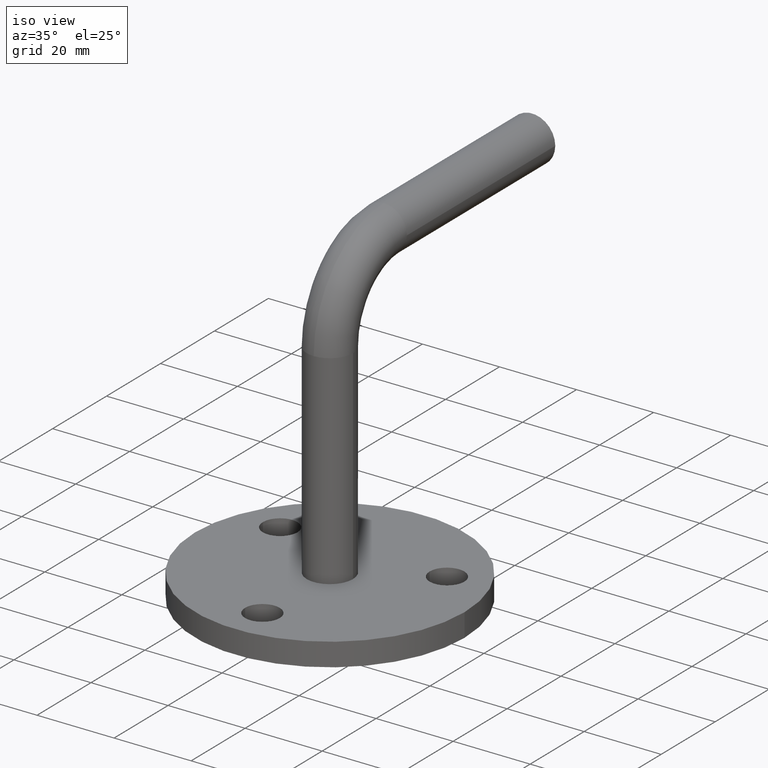
[diagram: clean part render]
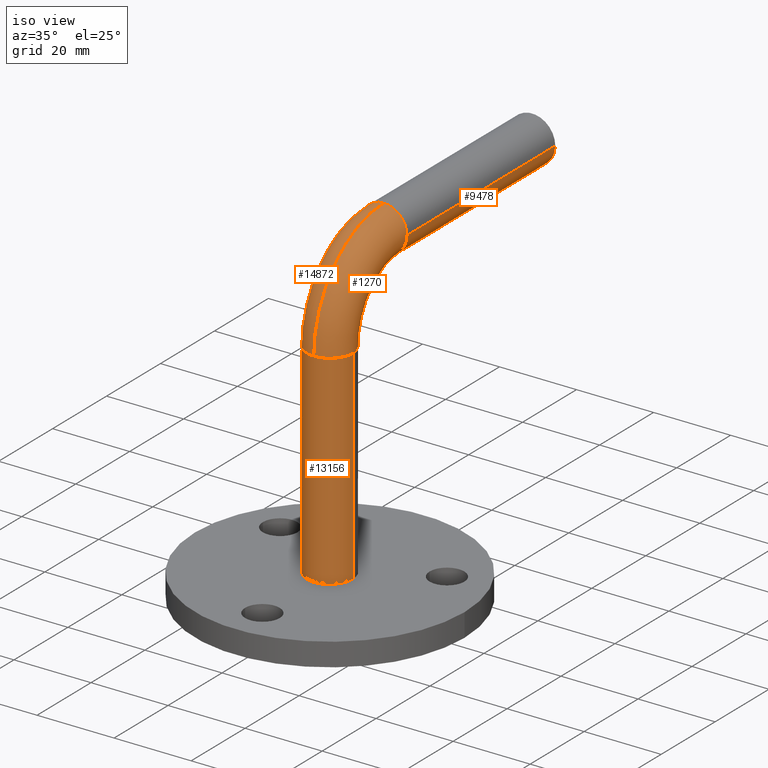
[diagram: same view with one multi-face feature highlighted, each face labeled with its STEP entity id]
A machine part, iso view. The highlighted faces form ONE feature: a constant-radius fillet chain: 4 tangent blend faces with common blend radius 6 mm. The faces share edges in the B-rep.
Their STEP definitions:
[1] entity #14872 (Torus):
#178 = VERTEX_POINT ( 'NONE', #11381 ) ;
#617 = VERTEX_POINT ( 'NONE', #6529 ) ;
#913 = ORIENTED_EDGE ( 'NONE', *, *, #7463, .T. ) ;
#1029 = CARTESIAN_POINT ( 'NONE',  ( 0.0000000000000000000, 0.0000000000000000000, 59.00000000000000000 ) ) ;
#1162 = FACE_OUTER_BOUND ( 'NONE', #6257, .T. ) ;
#1683 = DIRECTION ( 'NONE',  ( -1.000000000000000000, -0.0000000000000000000, -0.0000000000000000000 ) ) ;
#1951 = AXIS2_PLACEMENT_3D ( 'NONE', #13041, #9296, #12993 ) ;
#2080 = ORIENTED_EDGE ( 'NONE', *, *, #13804, .T. ) ;
#2146 = DIRECTION ( 'NONE',  ( -1.000000000000000000, 0.0000000000000000000, 0.0000000000000000000 ) ) ;
#2184 = DIRECTION ( 'NONE',  ( -1.000000000000000000, 0.0000000000000000000, 0.0000000000000000000 ) ) ;
#2255 = CARTESIAN_POINT ( 'NONE',  ( 0.0000000000000000000, 20.00000000000000400, 79.00000000000000000 ) ) ;
#2323 = DIRECTION ( 'NONE',  ( 0.0000000000000000000, -1.000000000000000000, 1.608122649676636600E-016 ) ) ;
#2371 = CARTESIAN_POINT ( 'NONE',  ( 0.0000000000000000000, 20.00000000000000400, 79.00000000000000000 ) ) ;
#2390 = DIRECTION ( 'NONE',  ( 0.0000000000000000000, 0.0000000000000000000, -1.000000000000000000 ) ) ;
#3187 = CARTESIAN_POINT ( 'NONE',  ( -6.000000000000000900, 20.00000000000000400, 79.00000000000000000 ) ) ;
#3403 = ORIENTED_EDGE ( 'NONE', *, *, #10945, .F. ) ;
#3743 = CARTESIAN_POINT ( 'NONE',  ( 7.347880794884120700E-016, 20.00000000000000000, 59.00000000000000000 ) ) ;
#3798 = CARTESIAN_POINT ( 'NONE',  ( 0.0000000000000000000, 20.00000000000000000, 59.00000000000000000 ) ) ;
#4017 = TOROIDAL_SURFACE ( 'NONE', #5870, 20.00000000000000000, 6.000000000000000900 ) ;
#5027 = DIRECTION ( 'NONE',  ( -1.000000000000000000, -0.0000000000000000000, -0.0000000000000000000 ) ) ;
#5229 = CIRCLE ( 'NONE', #1951, 6.000000000000000900 ) ;
#5315 = CARTESIAN_POINT ( 'NONE',  ( 0.0000000000000000000, 20.00000000000000000, 59.00000000000000000 ) ) ;
#5325 = CIRCLE ( 'NONE', #11515, 25.99999999999999600 ) ;
#5870 = AXIS2_PLACEMENT_3D ( 'NONE', #5315, #1683, #15108 ) ;
#6257 = EDGE_LOOP ( 'NONE', ( #3403, #913, #10732, #2080, #8672, #10711 ) ) ;
#6529 = CARTESIAN_POINT ( 'NONE',  ( 7.347880794884119700E-016, 6.000000000000000900, 59.00000000000000000 ) ) ;
#6743 = AXIS2_PLACEMENT_3D ( 'NONE', #2255, #7146, #2146 ) ;
#7146 = DIRECTION ( 'NONE',  ( 0.0000000000000000000, -1.000000000000000000, 1.608122649676636600E-016 ) ) ;
#7436 = CARTESIAN_POINT ( 'NONE',  ( 0.0000000000000000000, -6.000000000000001800, 59.00000000000000000 ) ) ;
#7463 = EDGE_CURVE ( 'NONE', #11131, #178, #5325, .T. ) ;
#7633 = AXIS2_PLACEMENT_3D ( 'NONE', #2371, #2323, #10841 ) ;
#8046 = CIRCLE ( 'NONE', #9568, 13.99999999999999800 ) ;
#8241 = CIRCLE ( 'NONE', #7633, 6.000000000000000900 ) ;
#8567 = CIRCLE ( 'NONE', #6743, 6.000000000000000900 ) ;
#8601 = CIRCLE ( 'NONE', #12025, 6.000000000000000900 ) ;
#8672 = ORIENTED_EDGE ( 'NONE', *, *, #10815, .F. ) ;
#9296 = DIRECTION ( 'NONE',  ( 0.0000000000000000000, 0.0000000000000000000, -1.000000000000000000 ) ) ;
#9568 = AXIS2_PLACEMENT_3D ( 'NONE', #3743, #12250, #13329 ) ;
#9583 = VERTEX_POINT ( 'NONE', #3187 ) ;
#10329 = EDGE_CURVE ( 'NONE', #178, #9583, #8241, .T. ) ;
#10711 = ORIENTED_EDGE ( 'NONE', *, *, #11033, .F. ) ;
#10732 = ORIENTED_EDGE ( 'NONE', *, *, #10329, .T. ) ;
#10815 = EDGE_CURVE ( 'NONE', #617, #14056, #8046, .T. ) ;
#10841 = DIRECTION ( 'NONE',  ( -1.000000000000000000, 0.0000000000000000000, 0.0000000000000000000 ) ) ;
#10945 = EDGE_CURVE ( 'NONE', #11131, #14095, #5229, .T. ) ;
#11033 = EDGE_CURVE ( 'NONE', #14095, #617, #8601, .T. ) ;
#11131 = VERTEX_POINT ( 'NONE', #7436 ) ;
#11381 = CARTESIAN_POINT ( 'NONE',  ( 0.0000000000000000000, 20.00000000000000400, 84.99999999999998600 ) ) ;
#11515 = AXIS2_PLACEMENT_3D ( 'NONE', #3798, #5027, #13535 ) ;
#12025 = AXIS2_PLACEMENT_3D ( 'NONE', #1029, #2390, #2184 ) ;
#12250 = DIRECTION ( 'NONE',  ( -1.000000000000000000, -0.0000000000000000000, -0.0000000000000000000 ) ) ;
#12572 = CARTESIAN_POINT ( 'NONE',  ( 7.347880794884114800E-016, 20.00000000000000400, 73.00000000000000000 ) ) ;
#12993 = DIRECTION ( 'NONE',  ( -1.000000000000000000, 0.0000000000000000000, 0.0000000000000000000 ) ) ;
#13041 = CARTESIAN_POINT ( 'NONE',  ( 0.0000000000000000000, 0.0000000000000000000, 59.00000000000000000 ) ) ;
#13329 = DIRECTION ( 'NONE',  ( 0.0000000000000000000, 0.0000000000000000000, 1.000000000000000000 ) ) ;
#13535 = DIRECTION ( 'NONE',  ( 0.0000000000000000000, 0.0000000000000000000, 1.000000000000000000 ) ) ;
#13804 = EDGE_CURVE ( 'NONE', #9583, #14056, #8567, .T. ) ;
#14056 = VERTEX_POINT ( 'NONE', #12572 ) ;
#14095 = VERTEX_POINT ( 'NONE', #15096 ) ;
#14872 = ADVANCED_FACE ( 'NONE', ( #1162 ), #4017, .T. ) ;
#15096 = CARTESIAN_POINT ( 'NONE',  ( -6.000000000000000900, 0.0000000000000000000, 59.00000000000000000 ) ) ;
#15108 = DIRECTION ( 'NONE',  ( 0.0000000000000000000, 0.0000000000000000000, 1.000000000000000000 ) ) ;
[2] entity #13156 (Cylinder):
#772 = ORIENTED_EDGE ( 'NONE', *, *, #14111, .T. ) ;
#1804 = ORIENTED_EDGE ( 'NONE', *, *, #2779, .T. ) ;
#1951 = AXIS2_PLACEMENT_3D ( 'NONE', #13041, #9296, #12993 ) ;
#2013 = LINE ( 'NONE', #15620, #3916 ) ;
#2779 = EDGE_CURVE ( 'NONE', #14095, #13806, #10975, .T. ) ;
#2887 = ORIENTED_EDGE ( 'NONE', *, *, #15567, .F. ) ;
#3200 = DIRECTION ( 'NONE',  ( -0.0000000000000000000, -0.0000000000000000000, -1.000000000000000000 ) ) ;
#3204 = DIRECTION ( 'NONE',  ( -1.000000000000000000, 0.0000000000000000000, 0.0000000000000000000 ) ) ;
#3248 = DIRECTION ( 'NONE',  ( -1.000000000000000000, 0.0000000000000000000, 0.0000000000000000000 ) ) ;
#3619 = VERTEX_POINT ( 'NONE', #9438 ) ;
#3916 = VECTOR ( 'NONE', #5928, 1000.000000000000000 ) ;
#4146 = DIRECTION ( 'NONE',  ( 0.0000000000000000000, 0.0000000000000000000, 1.000000000000000000 ) ) ;
#4299 = AXIS2_PLACEMENT_3D ( 'NONE', #14278, #8122, #3204 ) ;
#5229 = CIRCLE ( 'NONE', #1951, 6.000000000000000900 ) ;
#5389 = DIRECTION ( 'NONE',  ( 1.000000000000000000, 0.0000000000000000000, 0.0000000000000000000 ) ) ;
#5419 = ORIENTED_EDGE ( 'NONE', *, *, #15759, .T. ) ;
#5821 = AXIS2_PLACEMENT_3D ( 'NONE', #12710, #4146, #5389 ) ;
#5928 = DIRECTION ( 'NONE',  ( -0.0000000000000000000, -0.0000000000000000000, -1.000000000000000000 ) ) ;
#6317 = CYLINDRICAL_SURFACE ( 'NONE', #8554, 6.000000000000000900 ) ;
#7436 = CARTESIAN_POINT ( 'NONE',  ( 0.0000000000000000000, -6.000000000000001800, 59.00000000000000000 ) ) ;
#7952 = CARTESIAN_POINT ( 'NONE',  ( 6.000000000000000900, 7.347880794884120700E-016, 59.00000000000000000 ) ) ;
#8122 = DIRECTION ( 'NONE',  ( 0.0000000000000000000, 0.0000000000000000000, -1.000000000000000000 ) ) ;
#8554 = AXIS2_PLACEMENT_3D ( 'NONE', #10438, #15405, #3248 ) ;
#9296 = DIRECTION ( 'NONE',  ( 0.0000000000000000000, 0.0000000000000000000, -1.000000000000000000 ) ) ;
#9438 = CARTESIAN_POINT ( 'NONE',  ( 6.000000000000000900, 7.347880794884120700E-016, 5.999999999999998200 ) ) ;
#10438 = CARTESIAN_POINT ( 'NONE',  ( 0.0000000000000000000, 0.0000000000000000000, 59.00000000000000000 ) ) ;
#10586 = CARTESIAN_POINT ( 'NONE',  ( -6.000000000000000900, 0.0000000000000000000, 59.00000000000000000 ) ) ;
#10697 = FACE_OUTER_BOUND ( 'NONE', #12482, .T. ) ;
#10773 = CARTESIAN_POINT ( 'NONE',  ( -6.000000000000000900, 0.0000000000000000000, 5.999999999999998200 ) ) ;
#10945 = EDGE_CURVE ( 'NONE', #11131, #14095, #5229, .T. ) ;
#10975 = LINE ( 'NONE', #10586, #14799 ) ;
#11131 = VERTEX_POINT ( 'NONE', #7436 ) ;
#11357 = VERTEX_POINT ( 'NONE', #7952 ) ;
#12096 = CIRCLE ( 'NONE', #5821, 6.000000000000000900 ) ;
#12482 = EDGE_LOOP ( 'NONE', ( #2887, #772, #15650, #1804, #5419 ) ) ;
#12710 = CARTESIAN_POINT ( 'NONE',  ( 0.0000000000000000000, 0.0000000000000000000, 5.999999999999998200 ) ) ;
#12993 = DIRECTION ( 'NONE',  ( -1.000000000000000000, 0.0000000000000000000, 0.0000000000000000000 ) ) ;
#13041 = CARTESIAN_POINT ( 'NONE',  ( 0.0000000000000000000, 0.0000000000000000000, 59.00000000000000000 ) ) ;
#13156 = ADVANCED_FACE ( 'NONE', ( #10697 ), #6317, .T. ) ;
#13739 = CIRCLE ( 'NONE', #4299, 6.000000000000000900 ) ;
#13806 = VERTEX_POINT ( 'NONE', #10773 ) ;
#14095 = VERTEX_POINT ( 'NONE', #15096 ) ;
#14111 = EDGE_CURVE ( 'NONE', #11357, #11131, #13739, .T. ) ;
#14278 = CARTESIAN_POINT ( 'NONE',  ( 0.0000000000000000000, 0.0000000000000000000, 59.00000000000000000 ) ) ;
#14799 = VECTOR ( 'NONE', #3200, 1000.000000000000000 ) ;
#15096 = CARTESIAN_POINT ( 'NONE',  ( -6.000000000000000900, 0.0000000000000000000, 59.00000000000000000 ) ) ;
#15405 = DIRECTION ( 'NONE',  ( -0.0000000000000000000, -0.0000000000000000000, -1.000000000000000000 ) ) ;
#15567 = EDGE_CURVE ( 'NONE', #11357, #3619, #2013, .T. ) ;
#15620 = CARTESIAN_POINT ( 'NONE',  ( 6.000000000000000900, 7.347880794884120700E-016, 59.00000000000000000 ) ) ;
#15650 = ORIENTED_EDGE ( 'NONE', *, *, #10945, .T. ) ;
#15759 = EDGE_CURVE ( 'NONE', #13806, #3619, #12096, .T. ) ;
[3] entity #1270 (Torus):
#17 = DIRECTION ( 'NONE',  ( -1.000000000000000000, 0.0000000000000000000, 0.0000000000000000000 ) ) ;
#178 = VERTEX_POINT ( 'NONE', #11381 ) ;
#238 = CARTESIAN_POINT ( 'NONE',  ( 6.000000000000000900, 20.00000000000000400, 79.00000000000000000 ) ) ;
#617 = VERTEX_POINT ( 'NONE', #6529 ) ;
#1270 = ADVANCED_FACE ( 'NONE', ( #3566 ), #7361, .T. ) ;
#2467 = CARTESIAN_POINT ( 'NONE',  ( 0.0000000000000000000, 20.00000000000000400, 79.00000000000000000 ) ) ;
#2954 = CARTESIAN_POINT ( 'NONE',  ( 0.0000000000000000000, 20.00000000000000400, 79.00000000000000000 ) ) ;
#3199 = CIRCLE ( 'NONE', #3370, 6.000000000000000900 ) ;
#3204 = DIRECTION ( 'NONE',  ( -1.000000000000000000, 0.0000000000000000000, 0.0000000000000000000 ) ) ;
#3370 = AXIS2_PLACEMENT_3D ( 'NONE', #2954, #12684, #5417 ) ;
#3566 = FACE_OUTER_BOUND ( 'NONE', #12451, .T. ) ;
#3697 = EDGE_CURVE ( 'NONE', #14056, #8956, #4495, .T. ) ;
#3743 = CARTESIAN_POINT ( 'NONE',  ( 7.347880794884120700E-016, 20.00000000000000000, 59.00000000000000000 ) ) ;
#3798 = CARTESIAN_POINT ( 'NONE',  ( 0.0000000000000000000, 20.00000000000000000, 59.00000000000000000 ) ) ;
#4299 = AXIS2_PLACEMENT_3D ( 'NONE', #14278, #8122, #3204 ) ;
#4495 = CIRCLE ( 'NONE', #8657, 6.000000000000000900 ) ;
#4843 = ORIENTED_EDGE ( 'NONE', *, *, #11142, .F. ) ;
#5027 = DIRECTION ( 'NONE',  ( -1.000000000000000000, -0.0000000000000000000, -0.0000000000000000000 ) ) ;
#5325 = CIRCLE ( 'NONE', #11515, 25.99999999999999600 ) ;
#5417 = DIRECTION ( 'NONE',  ( -1.000000000000000000, 0.0000000000000000000, 0.0000000000000000000 ) ) ;
#5418 = CIRCLE ( 'NONE', #13883, 6.000000000000000900 ) ;
#5931 = ORIENTED_EDGE ( 'NONE', *, *, #10815, .T. ) ;
#6110 = DIRECTION ( 'NONE',  ( -1.000000000000000000, 0.0000000000000000000, 0.0000000000000000000 ) ) ;
#6529 = CARTESIAN_POINT ( 'NONE',  ( 7.347880794884119700E-016, 6.000000000000000900, 59.00000000000000000 ) ) ;
#6794 = ORIENTED_EDGE ( 'NONE', *, *, #7463, .F. ) ;
#7282 = CARTESIAN_POINT ( 'NONE',  ( 0.0000000000000000000, 0.0000000000000000000, 59.00000000000000000 ) ) ;
#7341 = DIRECTION ( 'NONE',  ( -1.000000000000000000, -0.0000000000000000000, -0.0000000000000000000 ) ) ;
#7361 = TOROIDAL_SURFACE ( 'NONE', #10424, 20.00000000000000000, 6.000000000000000900 ) ;
#7383 = ORIENTED_EDGE ( 'NONE', *, *, #14111, .F. ) ;
#7436 = CARTESIAN_POINT ( 'NONE',  ( 0.0000000000000000000, -6.000000000000001800, 59.00000000000000000 ) ) ;
#7443 = DIRECTION ( 'NONE',  ( 0.0000000000000000000, 0.0000000000000000000, 1.000000000000000000 ) ) ;
#7463 = EDGE_CURVE ( 'NONE', #11131, #178, #5325, .T. ) ;
#7952 = CARTESIAN_POINT ( 'NONE',  ( 6.000000000000000900, 7.347880794884120700E-016, 59.00000000000000000 ) ) ;
#8046 = CIRCLE ( 'NONE', #9568, 13.99999999999999800 ) ;
#8122 = DIRECTION ( 'NONE',  ( 0.0000000000000000000, 0.0000000000000000000, -1.000000000000000000 ) ) ;
#8633 = DIRECTION ( 'NONE',  ( 0.0000000000000000000, 0.0000000000000000000, -1.000000000000000000 ) ) ;
#8657 = AXIS2_PLACEMENT_3D ( 'NONE', #2467, #12151, #6110 ) ;
#8667 = EDGE_CURVE ( 'NONE', #8956, #178, #3199, .T. ) ;
#8956 = VERTEX_POINT ( 'NONE', #238 ) ;
#9568 = AXIS2_PLACEMENT_3D ( 'NONE', #3743, #12250, #13329 ) ;
#9725 = CARTESIAN_POINT ( 'NONE',  ( 0.0000000000000000000, 20.00000000000000000, 59.00000000000000000 ) ) ;
#9837 = ORIENTED_EDGE ( 'NONE', *, *, #3697, .T. ) ;
#10424 = AXIS2_PLACEMENT_3D ( 'NONE', #9725, #7341, #7443 ) ;
#10815 = EDGE_CURVE ( 'NONE', #617, #14056, #8046, .T. ) ;
#11131 = VERTEX_POINT ( 'NONE', #7436 ) ;
#11142 = EDGE_CURVE ( 'NONE', #617, #11357, #5418, .T. ) ;
#11357 = VERTEX_POINT ( 'NONE', #7952 ) ;
#11381 = CARTESIAN_POINT ( 'NONE',  ( 0.0000000000000000000, 20.00000000000000400, 84.99999999999998600 ) ) ;
#11515 = AXIS2_PLACEMENT_3D ( 'NONE', #3798, #5027, #13535 ) ;
#12151 = DIRECTION ( 'NONE',  ( 0.0000000000000000000, -1.000000000000000000, 1.608122649676636600E-016 ) ) ;
#12250 = DIRECTION ( 'NONE',  ( -1.000000000000000000, -0.0000000000000000000, -0.0000000000000000000 ) ) ;
#12451 = EDGE_LOOP ( 'NONE', ( #6794, #7383, #4843, #5931, #9837, #14028 ) ) ;
#12572 = CARTESIAN_POINT ( 'NONE',  ( 7.347880794884114800E-016, 20.00000000000000400, 73.00000000000000000 ) ) ;
#12684 = DIRECTION ( 'NONE',  ( 0.0000000000000000000, -1.000000000000000000, 1.608122649676636600E-016 ) ) ;
#13329 = DIRECTION ( 'NONE',  ( 0.0000000000000000000, 0.0000000000000000000, 1.000000000000000000 ) ) ;
#13535 = DIRECTION ( 'NONE',  ( 0.0000000000000000000, 0.0000000000000000000, 1.000000000000000000 ) ) ;
#13739 = CIRCLE ( 'NONE', #4299, 6.000000000000000900 ) ;
#13883 = AXIS2_PLACEMENT_3D ( 'NONE', #7282, #8633, #17 ) ;
#14028 = ORIENTED_EDGE ( 'NONE', *, *, #8667, .T. ) ;
#14056 = VERTEX_POINT ( 'NONE', #12572 ) ;
#14111 = EDGE_CURVE ( 'NONE', #11357, #11131, #13739, .T. ) ;
#14278 = CARTESIAN_POINT ( 'NONE',  ( 0.0000000000000000000, 0.0000000000000000000, 59.00000000000000000 ) ) ;
[4] entity #9478 (Cylinder):
#203 = CARTESIAN_POINT ( 'NONE',  ( 6.000000000000006200, 75.00000000000000000, 79.00000000000000000 ) ) ;
#238 = CARTESIAN_POINT ( 'NONE',  ( 6.000000000000000900, 20.00000000000000400, 79.00000000000000000 ) ) ;
#856 = ORIENTED_EDGE ( 'NONE', *, *, #13804, .F. ) ;
#881 = CARTESIAN_POINT ( 'NONE',  ( -5.999999999999995600, 75.00000000000000000, 79.00000000000000000 ) ) ;
#1482 = DIRECTION ( 'NONE',  ( 8.795190648421900900E-017, 1.000000000000000000, 0.0000000000000000000 ) ) ;
#1486 = CARTESIAN_POINT ( 'NONE',  ( 0.0000000000000000000, 20.00000000000000400, 79.00000000000000000 ) ) ;
#1499 = ORIENTED_EDGE ( 'NONE', *, *, #6572, .T. ) ;
#2074 = EDGE_CURVE ( 'NONE', #11032, #14762, #13658, .T. ) ;
#2146 = DIRECTION ( 'NONE',  ( -1.000000000000000000, 0.0000000000000000000, 0.0000000000000000000 ) ) ;
#2255 = CARTESIAN_POINT ( 'NONE',  ( 0.0000000000000000000, 20.00000000000000400, 79.00000000000000000 ) ) ;
#2467 = CARTESIAN_POINT ( 'NONE',  ( 0.0000000000000000000, 20.00000000000000400, 79.00000000000000000 ) ) ;
#2931 = VECTOR ( 'NONE', #15340, 1000.000000000000000 ) ;
#3187 = CARTESIAN_POINT ( 'NONE',  ( -6.000000000000000900, 20.00000000000000400, 79.00000000000000000 ) ) ;
#3358 = EDGE_LOOP ( 'NONE', ( #6982, #12635, #856, #1499, #3615 ) ) ;
#3527 = FACE_OUTER_BOUND ( 'NONE', #3358, .T. ) ;
#3615 = ORIENTED_EDGE ( 'NONE', *, *, #2074, .T. ) ;
#3697 = EDGE_CURVE ( 'NONE', #14056, #8956, #4495, .T. ) ;
#4036 = DIRECTION ( 'NONE',  ( 8.795190648421900900E-017, 1.000000000000000000, 0.0000000000000000000 ) ) ;
#4495 = CIRCLE ( 'NONE', #8657, 6.000000000000000900 ) ;
#5581 = DIRECTION ( 'NONE',  ( -1.000000000000000000, 0.0000000000000000000, 0.0000000000000000000 ) ) ;
#6110 = DIRECTION ( 'NONE',  ( -1.000000000000000000, 0.0000000000000000000, 0.0000000000000000000 ) ) ;
#6572 = EDGE_CURVE ( 'NONE', #9583, #11032, #11295, .T. ) ;
#6743 = AXIS2_PLACEMENT_3D ( 'NONE', #2255, #7146, #2146 ) ;
#6745 = CARTESIAN_POINT ( 'NONE',  ( 6.000000000000000900, 20.00000000000000400, 79.00000000000000000 ) ) ;
#6982 = ORIENTED_EDGE ( 'NONE', *, *, #11343, .F. ) ;
#7146 = DIRECTION ( 'NONE',  ( 0.0000000000000000000, -1.000000000000000000, 1.608122649676636600E-016 ) ) ;
#8567 = CIRCLE ( 'NONE', #6743, 6.000000000000000900 ) ;
#8657 = AXIS2_PLACEMENT_3D ( 'NONE', #2467, #12151, #6110 ) ;
#8776 = DIRECTION ( 'NONE',  ( -1.000000000000000000, 0.0000000000000000000, 0.0000000000000000000 ) ) ;
#8797 = VECTOR ( 'NONE', #1482, 1000.000000000000000 ) ;
#8956 = VERTEX_POINT ( 'NONE', #238 ) ;
#9478 = ADVANCED_FACE ( 'NONE', ( #3527 ), #14580, .T. ) ;
#9583 = VERTEX_POINT ( 'NONE', #3187 ) ;
#9654 = CARTESIAN_POINT ( 'NONE',  ( -6.000000000000000900, 20.00000000000000400, 79.00000000000000000 ) ) ;
#10609 = AXIS2_PLACEMENT_3D ( 'NONE', #1486, #4036, #8776 ) ;
#11032 = VERTEX_POINT ( 'NONE', #881 ) ;
#11295 = LINE ( 'NONE', #9654, #8797 ) ;
#11343 = EDGE_CURVE ( 'NONE', #8956, #14762, #13783, .T. ) ;
#12151 = DIRECTION ( 'NONE',  ( 0.0000000000000000000, -1.000000000000000000, 1.608122649676636600E-016 ) ) ;
#12572 = CARTESIAN_POINT ( 'NONE',  ( 7.347880794884114800E-016, 20.00000000000000400, 73.00000000000000000 ) ) ;
#12635 = ORIENTED_EDGE ( 'NONE', *, *, #3697, .F. ) ;
#12686 = CARTESIAN_POINT ( 'NONE',  ( 4.837354856632045500E-015, 75.00000000000000000, 79.00000000000000000 ) ) ;
#13658 = CIRCLE ( 'NONE', #14520, 6.000000000000000900 ) ;
#13783 = LINE ( 'NONE', #6745, #2931 ) ;
#13804 = EDGE_CURVE ( 'NONE', #9583, #14056, #8567, .T. ) ;
#13923 = DIRECTION ( 'NONE',  ( 0.0000000000000000000, -1.000000000000000000, 1.608122649676636600E-016 ) ) ;
#14056 = VERTEX_POINT ( 'NONE', #12572 ) ;
#14520 = AXIS2_PLACEMENT_3D ( 'NONE', #12686, #13923, #5581 ) ;
#14580 = CYLINDRICAL_SURFACE ( 'NONE', #10609, 6.000000000000000900 ) ;
#14762 = VERTEX_POINT ( 'NONE', #203 ) ;
#15340 = DIRECTION ( 'NONE',  ( 8.795190648421900900E-017, 1.000000000000000000, 0.0000000000000000000 ) ) ;